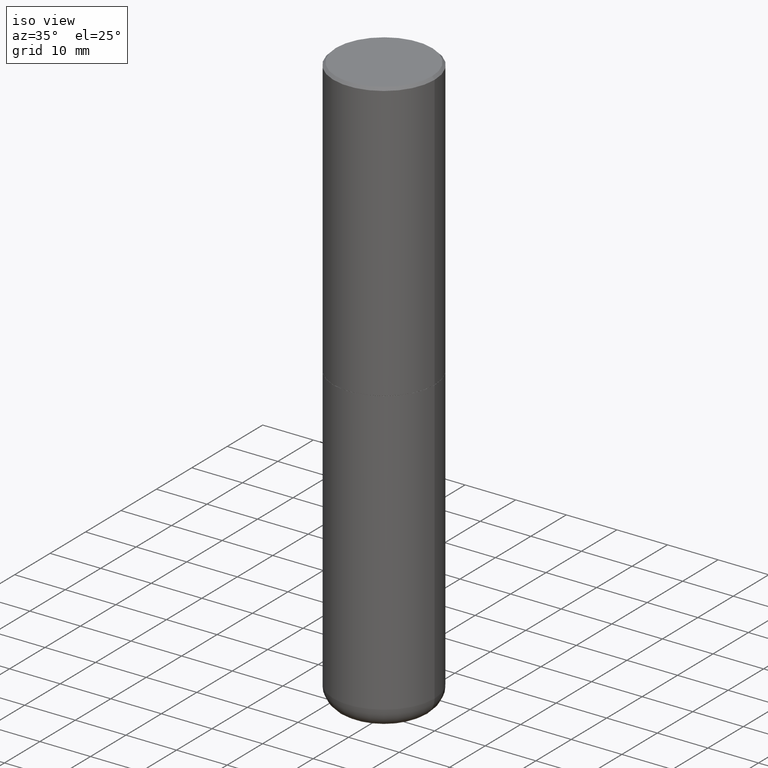
[diagram: clean part render]
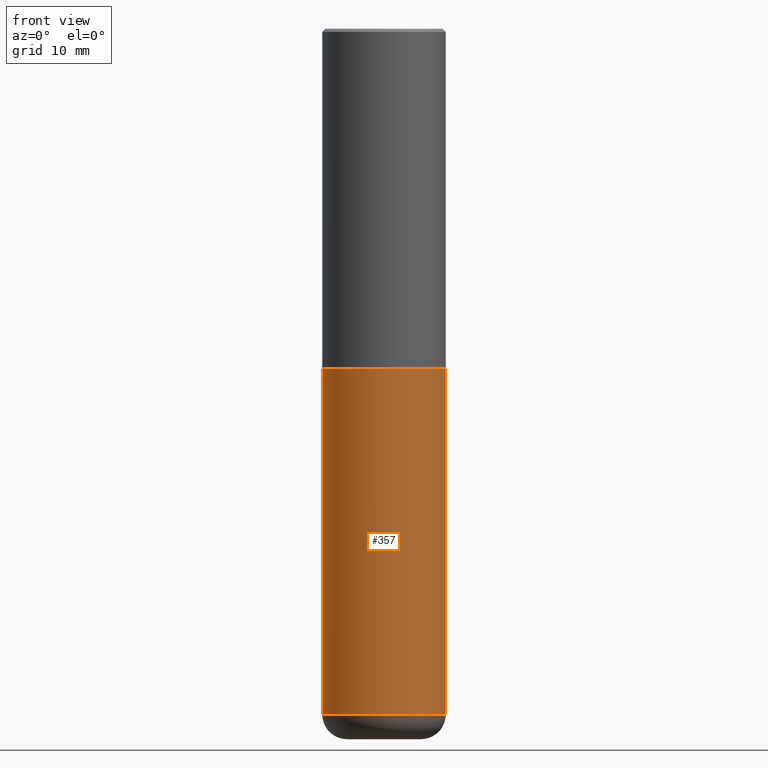
[diagram: tour spotlight — one face highlighted and labeled with its STEP entity id]
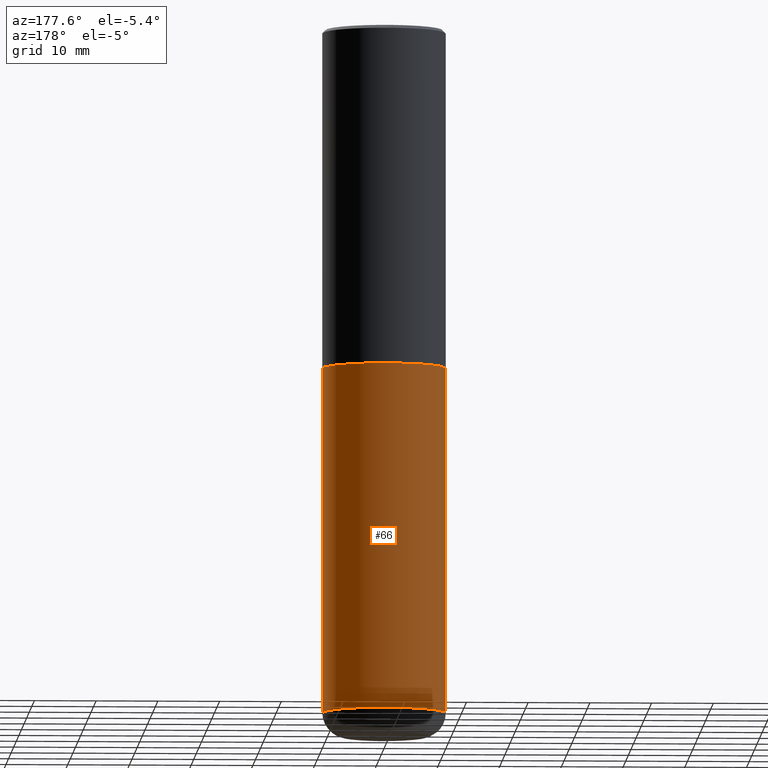
[diagram: tour spotlight — one face highlighted and labeled with its STEP entity id]
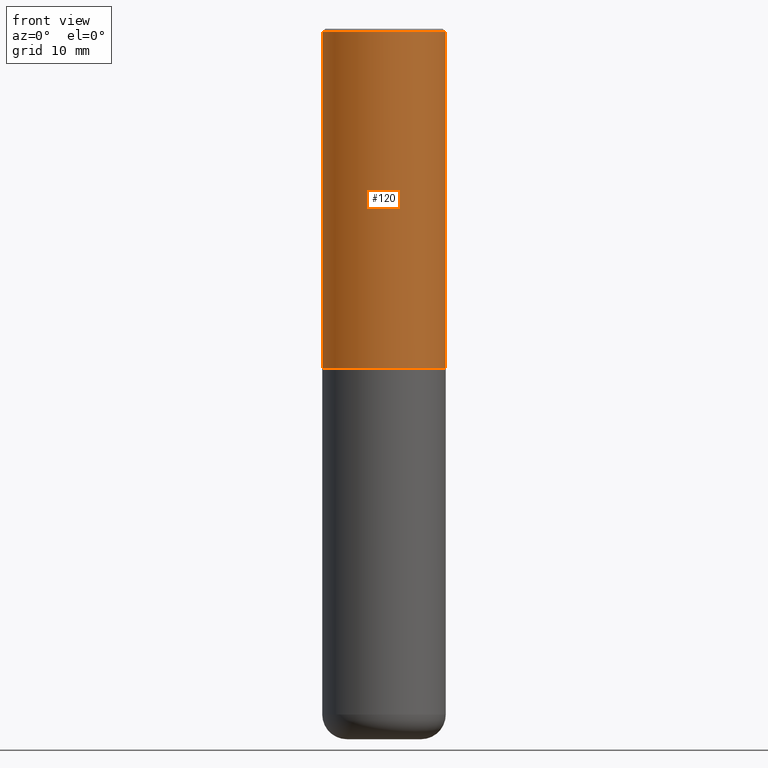
[diagram: tour spotlight — one face highlighted and labeled with its STEP entity id]
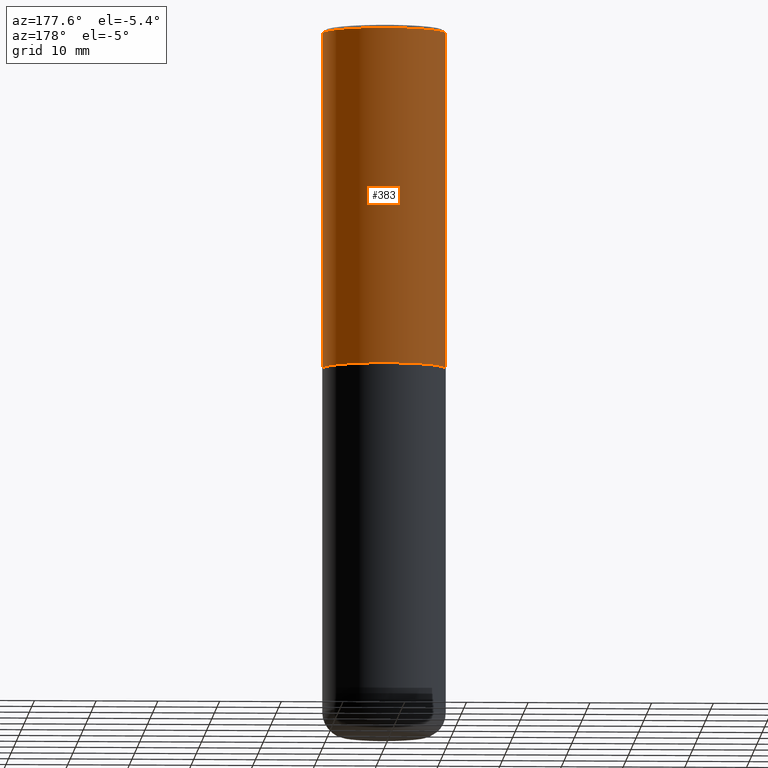
[diagram: tour spotlight — one face highlighted and labeled with its STEP entity id]
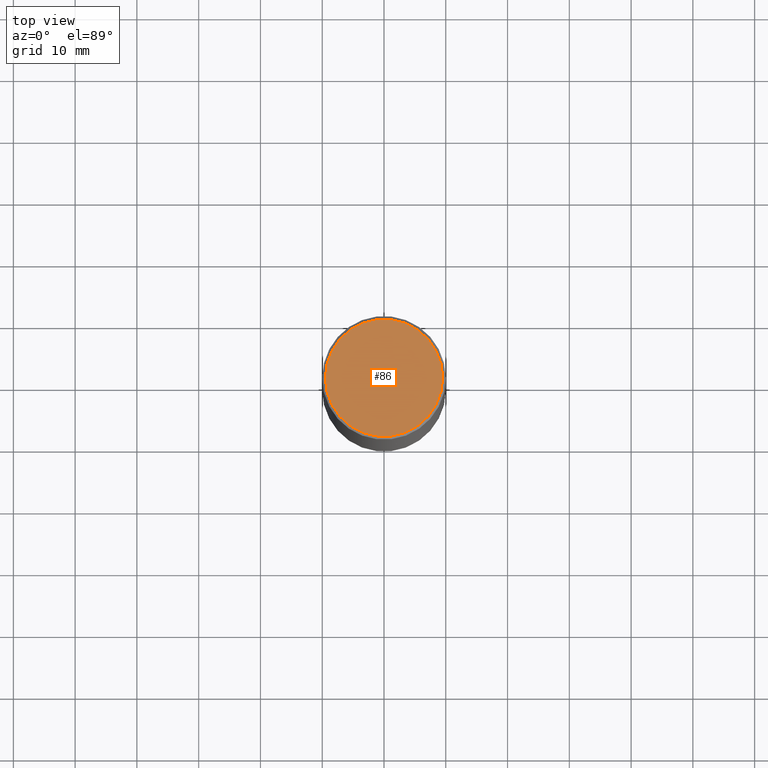
[diagram: tour spotlight — one face highlighted and labeled with its STEP entity id]
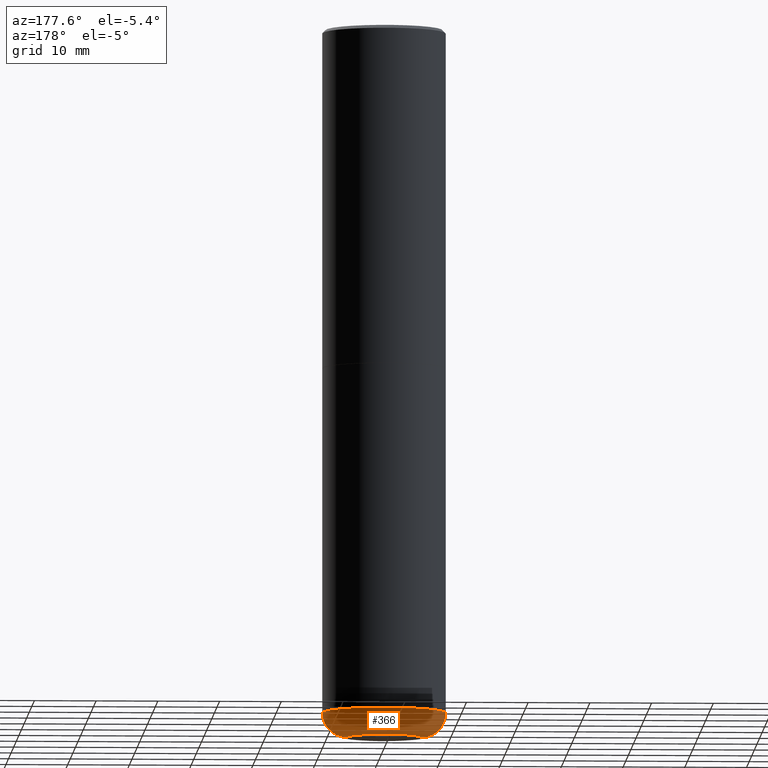
[diagram: tour spotlight — one face highlighted and labeled with its STEP entity id]
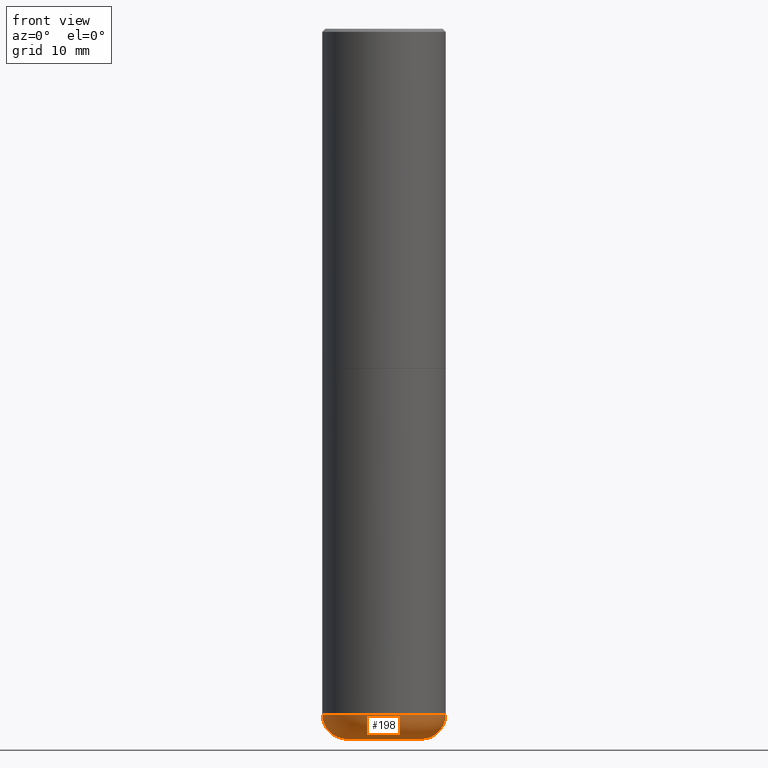
[diagram: tour spotlight — one face highlighted and labeled with its STEP entity id]
A machine part: a face-by-face anatomy tour. The part has 14 B-rep faces; the first image is the clean iso view, then the 7 largest visible faces are spotlighted one at a time (largest first), each with its STEP entity span.

Face 1 — front view, entity #357. In plain terms, the highlighted cylindrical surface (partial cylindrical patch) has radius 10 mm, axis along (-0, 0, 1).
Definition (entity closure, byte-faithful):
#2 = VECTOR ( 'NONE', #296, 39.37007874015748143 ) ;
#11 = FACE_OUTER_BOUND ( 'NONE', #188, .T. ) ;
#18 = DIRECTION ( 'NONE',  ( -2.445468806185136597E-29, 3.491481338843145583E-15, 1.000000000000000000 ) ) ;
#21 = CIRCLE ( 'NONE', #252, 0.3937000000000000499 ) ;
#27 = CIRCLE ( 'NONE', #351, 0.3937000000000001054 ) ;
#32 = VERTEX_POINT ( 'NONE', #114 ) ;
#46 = EDGE_CURVE ( 'NONE', #121, #395, #27, .T. ) ;
#56 = VERTEX_POINT ( 'NONE', #345 ) ;
#73 = CYLINDRICAL_SURFACE ( 'NONE', #293, 0.3937000000000001054 ) ;
#98 = DIRECTION ( 'NONE',  ( -2.445468806185136597E-29, 3.491481338843145583E-15, 1.000000000000000000 ) ) ;
#101 = ORIENTED_EDGE ( 'NONE', *, *, #282, .F. ) ;
#113 = EDGE_CURVE ( 'NONE', #56, #32, #21, .T. ) ;
#114 = CARTESIAN_POINT ( 'NONE',  ( 0.3937000000000000499, -1.030964609733602906E-14, -2.165399999999999547 ) ) ;
#121 = VERTEX_POINT ( 'NONE', #176 ) ;
#141 = CARTESIAN_POINT ( 'NONE',  ( 5.295418152913293224E-29, -7.560453691130945845E-15, -2.165399999999999547 ) ) ;
#143 = CARTESIAN_POINT ( 'NONE',  ( 0.3937000000000001054, -2.749192406205084005E-15, 1.919750796630860452E-29 ) ) ;
#163 = DIRECTION ( 'NONE',  ( 1.000000000000000000, -6.982962677686266711E-15, 4.876176775795935793E-29 ) ) ;
#176 = CARTESIAN_POINT ( 'NONE',  ( -0.3937000000000001054, -1.246071584819091497E-14, -4.370099999999998985 ) ) ;
#178 = VECTOR ( 'NONE', #284, 39.37007874015748143 ) ;
#179 = DIRECTION ( 'NONE',  ( 1.000000000000000000, -6.982962677686265133E-15, 0.000000000000000000 ) ) ;
#181 = CARTESIAN_POINT ( 'NONE',  ( 1.068694322990966450E-28, -1.525812259887842897E-14, -4.370099999999998985 ) ) ;
#188 = EDGE_LOOP ( 'NONE', ( #101, #350, #255, #230 ) ) ;
#204 = EDGE_CURVE ( 'NONE', #395, #32, #226, .T. ) ;
#214 = DIRECTION ( 'NONE',  ( -2.445468806185136597E-29, 3.491481338843145583E-15, 1.000000000000000000 ) ) ;
#226 = LINE ( 'NONE', #143, #178 ) ;
#230 = ORIENTED_EDGE ( 'NONE', *, *, #113, .F. ) ;
#234 = CARTESIAN_POINT ( 'NONE',  ( -0.3937000000000001054, 2.797406750687515181E-15, -1.936584745033357016E-29 ) ) ;
#243 = DIRECTION ( 'NONE',  ( 1.000000000000000000, -6.982962677686261977E-15, 0.000000000000000000 ) ) ;
#252 = AXIS2_PLACEMENT_3D ( 'NONE', #141, #18, #179 ) ;
#255 = ORIENTED_EDGE ( 'NONE', *, *, #204, .T. ) ;
#264 = CARTESIAN_POINT ( 'NONE',  ( 0.000000000000000000, 0.000000000000000000, 0.000000000000000000 ) ) ;
#282 = EDGE_CURVE ( 'NONE', #121, #56, #305, .T. ) ;
#284 = DIRECTION ( 'NONE',  ( -2.445468806185136877E-29, 3.491481338843145188E-15, 1.000000000000000000 ) ) ;
#293 = AXIS2_PLACEMENT_3D ( 'NONE', #264, #98, #163 ) ;
#296 = DIRECTION ( 'NONE',  ( -2.445468806185136877E-29, 3.491481338843145188E-15, 1.000000000000000000 ) ) ;
#305 = LINE ( 'NONE', #234, #2 ) ;
#308 = CARTESIAN_POINT ( 'NONE',  ( 0.3937000000000001054, -1.800731500508351219E-14, -4.370099999999998985 ) ) ;
#345 = CARTESIAN_POINT ( 'NONE',  ( -0.3937000000000000499, -8.611881394317173410E-15, -2.165399999999999547 ) ) ;
#350 = ORIENTED_EDGE ( 'NONE', *, *, #46, .T. ) ;
#351 = AXIS2_PLACEMENT_3D ( 'NONE', #181, #214, #243 ) ;
#357 = ADVANCED_FACE ( 'NONE', ( #11 ), #73, .T. ) ;
#395 = VERTEX_POINT ( 'NONE', #308 ) ;

Face 2 — auxiliary view, entity #66. In plain terms, the highlighted cylindrical surface (partial cylindrical patch) has radius 10 mm, axis along (-0, 0, 1).
Definition (entity closure, byte-faithful):
#2 = VECTOR ( 'NONE', #296, 39.37007874015748143 ) ;
#8 = AXIS2_PLACEMENT_3D ( 'NONE', #49, #311, #317 ) ;
#32 = VERTEX_POINT ( 'NONE', #114 ) ;
#49 = CARTESIAN_POINT ( 'NONE',  ( 0.000000000000000000, 0.000000000000000000, 0.000000000000000000 ) ) ;
#56 = VERTEX_POINT ( 'NONE', #345 ) ;
#66 = ADVANCED_FACE ( 'NONE', ( #109 ), #401, .T. ) ;
#109 = FACE_OUTER_BOUND ( 'NONE', #285, .T. ) ;
#114 = CARTESIAN_POINT ( 'NONE',  ( 0.3937000000000000499, -1.030964609733602906E-14, -2.165399999999999547 ) ) ;
#117 = DIRECTION ( 'NONE',  ( 1.000000000000000000, -6.982962677686265133E-15, 0.000000000000000000 ) ) ;
#121 = VERTEX_POINT ( 'NONE', #176 ) ;
#143 = CARTESIAN_POINT ( 'NONE',  ( 0.3937000000000001054, -2.749192406205084005E-15, 1.919750796630860452E-29 ) ) ;
#169 = AXIS2_PLACEMENT_3D ( 'NONE', #318, #413, #117 ) ;
#176 = CARTESIAN_POINT ( 'NONE',  ( -0.3937000000000001054, -1.246071584819091497E-14, -4.370099999999998985 ) ) ;
#178 = VECTOR ( 'NONE', #284, 39.37007874015748143 ) ;
#196 = DIRECTION ( 'NONE',  ( -2.445468806185136597E-29, 3.491481338843145583E-15, 1.000000000000000000 ) ) ;
#204 = EDGE_CURVE ( 'NONE', #395, #32, #226, .T. ) ;
#217 = EDGE_CURVE ( 'NONE', #32, #56, #380, .T. ) ;
#224 = ORIENTED_EDGE ( 'NONE', *, *, #260, .T. ) ;
#226 = LINE ( 'NONE', #143, #178 ) ;
#234 = CARTESIAN_POINT ( 'NONE',  ( -0.3937000000000001054, 2.797406750687515181E-15, -1.936584745033357016E-29 ) ) ;
#260 = EDGE_CURVE ( 'NONE', #395, #121, #307, .T. ) ;
#282 = EDGE_CURVE ( 'NONE', #121, #56, #305, .T. ) ;
#284 = DIRECTION ( 'NONE',  ( -2.445468806185136877E-29, 3.491481338843145188E-15, 1.000000000000000000 ) ) ;
#285 = EDGE_LOOP ( 'NONE', ( #224, #297, #363, #359 ) ) ;
#296 = DIRECTION ( 'NONE',  ( -2.445468806185136877E-29, 3.491481338843145188E-15, 1.000000000000000000 ) ) ;
#297 = ORIENTED_EDGE ( 'NONE', *, *, #282, .T. ) ;
#305 = LINE ( 'NONE', #234, #2 ) ;
#307 = CIRCLE ( 'NONE', #362, 0.3937000000000001054 ) ;
#308 = CARTESIAN_POINT ( 'NONE',  ( 0.3937000000000001054, -1.800731500508351219E-14, -4.370099999999998985 ) ) ;
#311 = DIRECTION ( 'NONE',  ( -2.445468806185136597E-29, 3.491481338843145583E-15, 1.000000000000000000 ) ) ;
#317 = DIRECTION ( 'NONE',  ( 1.000000000000000000, -6.982962677686266711E-15, 4.876176775795935793E-29 ) ) ;
#318 = CARTESIAN_POINT ( 'NONE',  ( 5.295418152913293224E-29, -7.560453691130945845E-15, -2.165399999999999547 ) ) ;
#331 = CARTESIAN_POINT ( 'NONE',  ( 1.068694322990966450E-28, -1.525812259887842897E-14, -4.370099999999998985 ) ) ;
#345 = CARTESIAN_POINT ( 'NONE',  ( -0.3937000000000000499, -8.611881394317173410E-15, -2.165399999999999547 ) ) ;
#359 = ORIENTED_EDGE ( 'NONE', *, *, #204, .F. ) ;
#362 = AXIS2_PLACEMENT_3D ( 'NONE', #331, #196, #391 ) ;
#363 = ORIENTED_EDGE ( 'NONE', *, *, #217, .F. ) ;
#380 = CIRCLE ( 'NONE', #169, 0.3937000000000000499 ) ;
#391 = DIRECTION ( 'NONE',  ( 1.000000000000000000, -6.982962677686261977E-15, 0.000000000000000000 ) ) ;
#395 = VERTEX_POINT ( 'NONE', #308 ) ;
#401 = CYLINDRICAL_SURFACE ( 'NONE', #8, 0.3937000000000001054 ) ;
#413 = DIRECTION ( 'NONE',  ( -2.445468806185136597E-29, 3.491481338843145583E-15, 1.000000000000000000 ) ) ;

Face 3 — front view, entity #120. In plain terms, the highlighted cylindrical surface (partial cylindrical patch) has radius 10 mm, axis along (-0, 0, 1).
Definition (entity closure, byte-faithful):
#13 = ORIENTED_EDGE ( 'NONE', *, *, #361, .F. ) ;
#14 = VERTEX_POINT ( 'NONE', #347 ) ;
#33 = AXIS2_PLACEMENT_3D ( 'NONE', #398, #303, #106 ) ;
#45 = DIRECTION ( 'NONE',  ( -2.445468806185136597E-29, 3.491481338843145583E-15, 1.000000000000000000 ) ) ;
#47 = DIRECTION ( 'NONE',  ( 1.000000000000000000, -6.982962677686266711E-15, 4.876176775795935793E-29 ) ) ;
#58 = VERTEX_POINT ( 'NONE', #237 ) ;
#102 = VECTOR ( 'NONE', #278, 39.37007874015748143 ) ;
#106 = DIRECTION ( 'NONE',  ( 1.000000000000000000, -6.982962677686266711E-15, 0.000000000000000000 ) ) ;
#108 = LINE ( 'NONE', #175, #374 ) ;
#120 = ADVANCED_FACE ( 'NONE', ( #375 ), #280, .T. ) ;
#128 = EDGE_CURVE ( 'NONE', #14, #219, #139, .T. ) ;
#134 = EDGE_LOOP ( 'NONE', ( #382, #336, #301, #13 ) ) ;
#139 = LINE ( 'NONE', #245, #102 ) ;
#149 = CARTESIAN_POINT ( 'NONE',  ( -0.3937000000000002720, -1.015989167596965718E-15, -2.164399999999999658 ) ) ;
#152 = AXIS2_PLACEMENT_3D ( 'NONE', #223, #417, #355 ) ;
#167 = EDGE_CURVE ( 'NONE', #191, #14, #360, .T. ) ;
#175 = CARTESIAN_POINT ( 'NONE',  ( -0.3937000000000002164, 2.797406750687515970E-15, -1.936584745033357576E-29 ) ) ;
#191 = VERTEX_POINT ( 'NONE', #149 ) ;
#205 = DIRECTION ( 'NONE',  ( -2.445468806185136877E-29, 3.491481338843145188E-15, 1.000000000000000000 ) ) ;
#212 = CARTESIAN_POINT ( 'NONE',  ( 0.000000000000000000, 0.000000000000000000, 0.000000000000000000 ) ) ;
#219 = VERTEX_POINT ( 'NONE', #376 ) ;
#223 = CARTESIAN_POINT ( 'NONE',  ( 5.292972684107107621E-29, -7.556962209792102838E-15, -2.164399999999999658 ) ) ;
#237 = CARTESIAN_POINT ( 'NONE',  ( -0.3937000000000001054, 2.679362779428220707E-15, -0.02000000000000008715 ) ) ;
#245 = CARTESIAN_POINT ( 'NONE',  ( 0.3937000000000002164, -2.749192406205084794E-15, 1.919750796630861012E-29 ) ) ;
#278 = DIRECTION ( 'NONE',  ( -2.445468806185136877E-29, 3.491481338843145188E-15, 1.000000000000000000 ) ) ;
#280 = CYLINDRICAL_SURFACE ( 'NONE', #326, 0.3937000000000002164 ) ;
#301 = ORIENTED_EDGE ( 'NONE', *, *, #128, .T. ) ;
#303 = DIRECTION ( 'NONE',  ( -2.445468806185136597E-29, 3.491481338843145583E-15, 1.000000000000000000 ) ) ;
#326 = AXIS2_PLACEMENT_3D ( 'NONE', #212, #45, #47 ) ;
#336 = ORIENTED_EDGE ( 'NONE', *, *, #167, .T. ) ;
#347 = CARTESIAN_POINT ( 'NONE',  ( 0.3937000000000002720, -1.030615461599718763E-14, -2.164399999999999658 ) ) ;
#355 = DIRECTION ( 'NONE',  ( 1.000000000000000000, -6.982962677686269077E-15, 0.000000000000000000 ) ) ;
#360 = CIRCLE ( 'NONE', #152, 0.3937000000000002720 ) ;
#361 = EDGE_CURVE ( 'NONE', #58, #219, #412, .T. ) ;
#374 = VECTOR ( 'NONE', #205, 39.37007874015748143 ) ;
#375 = FACE_OUTER_BOUND ( 'NONE', #134, .T. ) ;
#376 = CARTESIAN_POINT ( 'NONE',  ( 0.3937000000000001054, -2.770807688499516128E-15, -0.02000000000000008715 ) ) ;
#382 = ORIENTED_EDGE ( 'NONE', *, *, #410, .F. ) ;
#398 = CARTESIAN_POINT ( 'NONE',  ( 4.890937612370294178E-31, -6.982962677686321191E-17, -0.02000000000000008715 ) ) ;
#410 = EDGE_CURVE ( 'NONE', #191, #58, #108, .T. ) ;
#412 = CIRCLE ( 'NONE', #33, 0.3937000000000001054 ) ;
#417 = DIRECTION ( 'NONE',  ( -2.445468806185136597E-29, 3.491481338843145583E-15, 1.000000000000000000 ) ) ;

Face 4 — auxiliary view, entity #383. In plain terms, the highlighted cylindrical surface (partial cylindrical patch) has radius 10 mm, axis along (-0, 0, 1).
Definition (entity closure, byte-faithful):
#14 = VERTEX_POINT ( 'NONE', #347 ) ;
#16 = CARTESIAN_POINT ( 'NONE',  ( 0.000000000000000000, 0.000000000000000000, 0.000000000000000000 ) ) ;
#17 = EDGE_CURVE ( 'NONE', #219, #58, #332, .T. ) ;
#23 = DIRECTION ( 'NONE',  ( -2.445468806185136597E-29, 3.491481338843145583E-15, 1.000000000000000000 ) ) ;
#42 = DIRECTION ( 'NONE',  ( 1.000000000000000000, -6.982962677686266711E-15, 4.876176775795935793E-29 ) ) ;
#58 = VERTEX_POINT ( 'NONE', #237 ) ;
#76 = EDGE_CURVE ( 'NONE', #14, #191, #239, .T. ) ;
#79 = DIRECTION ( 'NONE',  ( 1.000000000000000000, -6.982962677686266711E-15, 0.000000000000000000 ) ) ;
#82 = CARTESIAN_POINT ( 'NONE',  ( 4.890937612370294178E-31, -6.982962677686321191E-17, -0.02000000000000008715 ) ) ;
#88 = EDGE_LOOP ( 'NONE', ( #325, #267, #328, #216 ) ) ;
#102 = VECTOR ( 'NONE', #278, 39.37007874015748143 ) ;
#108 = LINE ( 'NONE', #175, #374 ) ;
#128 = EDGE_CURVE ( 'NONE', #14, #219, #139, .T. ) ;
#139 = LINE ( 'NONE', #245, #102 ) ;
#144 = AXIS2_PLACEMENT_3D ( 'NONE', #82, #23, #79 ) ;
#149 = CARTESIAN_POINT ( 'NONE',  ( -0.3937000000000002720, -1.015989167596965718E-15, -2.164399999999999658 ) ) ;
#175 = CARTESIAN_POINT ( 'NONE',  ( -0.3937000000000002164, 2.797406750687515970E-15, -1.936584745033357576E-29 ) ) ;
#183 = AXIS2_PLACEMENT_3D ( 'NONE', #411, #372, #274 ) ;
#191 = VERTEX_POINT ( 'NONE', #149 ) ;
#205 = DIRECTION ( 'NONE',  ( -2.445468806185136877E-29, 3.491481338843145188E-15, 1.000000000000000000 ) ) ;
#207 = DIRECTION ( 'NONE',  ( -2.445468806185136597E-29, 3.491481338843145583E-15, 1.000000000000000000 ) ) ;
#216 = ORIENTED_EDGE ( 'NONE', *, *, #128, .F. ) ;
#219 = VERTEX_POINT ( 'NONE', #376 ) ;
#228 = FACE_OUTER_BOUND ( 'NONE', #88, .T. ) ;
#237 = CARTESIAN_POINT ( 'NONE',  ( -0.3937000000000001054, 2.679362779428220707E-15, -0.02000000000000008715 ) ) ;
#239 = CIRCLE ( 'NONE', #183, 0.3937000000000002720 ) ;
#245 = CARTESIAN_POINT ( 'NONE',  ( 0.3937000000000002164, -2.749192406205084794E-15, 1.919750796630861012E-29 ) ) ;
#267 = ORIENTED_EDGE ( 'NONE', *, *, #410, .T. ) ;
#274 = DIRECTION ( 'NONE',  ( 1.000000000000000000, -6.982962677686269077E-15, 0.000000000000000000 ) ) ;
#278 = DIRECTION ( 'NONE',  ( -2.445468806185136877E-29, 3.491481338843145188E-15, 1.000000000000000000 ) ) ;
#325 = ORIENTED_EDGE ( 'NONE', *, *, #76, .T. ) ;
#328 = ORIENTED_EDGE ( 'NONE', *, *, #17, .F. ) ;
#332 = CIRCLE ( 'NONE', #144, 0.3937000000000001054 ) ;
#333 = AXIS2_PLACEMENT_3D ( 'NONE', #16, #207, #42 ) ;
#337 = CYLINDRICAL_SURFACE ( 'NONE', #333, 0.3937000000000002164 ) ;
#347 = CARTESIAN_POINT ( 'NONE',  ( 0.3937000000000002720, -1.030615461599718763E-14, -2.164399999999999658 ) ) ;
#372 = DIRECTION ( 'NONE',  ( -2.445468806185136597E-29, 3.491481338843145583E-15, 1.000000000000000000 ) ) ;
#374 = VECTOR ( 'NONE', #205, 39.37007874015748143 ) ;
#376 = CARTESIAN_POINT ( 'NONE',  ( 0.3937000000000001054, -2.770807688499516128E-15, -0.02000000000000008715 ) ) ;
#383 = ADVANCED_FACE ( 'NONE', ( #228 ), #337, .T. ) ;
#410 = EDGE_CURVE ( 'NONE', #191, #58, #108, .T. ) ;
#411 = CARTESIAN_POINT ( 'NONE',  ( 5.292972684107107621E-29, -7.556962209792102838E-15, -2.164399999999999658 ) ) ;

Face 5 — top view, entity #86. In plain terms, the highlighted planar face has unit normal (0, -0, -1).
Definition (entity closure, byte-faithful):
#24 = DIRECTION ( 'NONE',  ( -1.000000000000000000, 6.982962677686265922E-15, -4.876176775795935793E-29 ) ) ;
#25 = EDGE_CURVE ( 'NONE', #201, #154, #379, .T. ) ;
#39 = EDGE_CURVE ( 'NONE', #154, #201, #388, .T. ) ;
#53 = AXIS2_PLACEMENT_3D ( 'NONE', #342, #343, #24 ) ;
#74 = DIRECTION ( 'NONE',  ( -2.445468806185136597E-29, 3.491481338843145583E-15, 1.000000000000000000 ) ) ;
#77 = DIRECTION ( 'NONE',  ( -2.445468806185136597E-29, 3.491481338843145583E-15, 1.000000000000000000 ) ) ;
#86 = ADVANCED_FACE ( 'NONE', ( #138 ), #367, .F. ) ;
#137 = DIRECTION ( 'NONE',  ( 1.000000000000000000, -6.982962677686266711E-15, 4.877734241229876808E-29 ) ) ;
#138 = FACE_OUTER_BOUND ( 'NONE', #373, .T. ) ;
#154 = VERTEX_POINT ( 'NONE', #381 ) ;
#201 = VERTEX_POINT ( 'NONE', #218 ) ;
#208 = AXIS2_PLACEMENT_3D ( 'NONE', #244, #77, #341 ) ;
#218 = CARTESIAN_POINT ( 'NONE',  ( -0.3736999999999999211, 2.644447966039789453E-15, 2.262311619753034352E-16 ) ) ;
#244 = CARTESIAN_POINT ( 'NONE',  ( -5.532412495976664402E-45, 7.898818803016371119E-31, 2.262311619753217762E-16 ) ) ;
#275 = ORIENTED_EDGE ( 'NONE', *, *, #39, .T. ) ;
#321 = ORIENTED_EDGE ( 'NONE', *, *, #25, .T. ) ;
#341 = DIRECTION ( 'NONE',  ( 1.000000000000000000, -6.982962677686266711E-15, 4.877734241229876808E-29 ) ) ;
#342 = CARTESIAN_POINT ( 'NONE',  ( 2.609533152651356620E-15, 0.3736999999999999211, -1.191650995338022328E-15 ) ) ;
#343 = DIRECTION ( 'NONE',  ( 2.438088387897960049E-29, -3.491481338843145188E-15, -1.000000000000000000 ) ) ;
#344 = AXIS2_PLACEMENT_3D ( 'NONE', #370, #74, #137 ) ;
#367 = PLANE ( 'NONE',  #53 ) ;
#370 = CARTESIAN_POINT ( 'NONE',  ( -5.532412495976664402E-45, 7.898818803016371119E-31, 2.262311619753217762E-16 ) ) ;
#373 = EDGE_LOOP ( 'NONE', ( #321, #275 ) ) ;
#379 = CIRCLE ( 'NONE', #344, 0.3736999999999999211 ) ;
#381 = CARTESIAN_POINT ( 'NONE',  ( 0.3736999999999999211, -2.667287895133367964E-15, 2.262311619753402158E-16 ) ) ;
#388 = CIRCLE ( 'NONE', #208, 0.3736999999999999211 ) ;

Face 6 — auxiliary view, entity #366. In plain terms, the highlighted toroidal blend (fillet) surface has major radius 5.9995 mm and minor (blend) radius 4.0005 mm.
Definition (entity closure, byte-faithful):
#6 = FACE_OUTER_BOUND ( 'NONE', #60, .T. ) ;
#7 = CARTESIAN_POINT ( 'NONE',  ( 0.2362000000000000210, -1.690749838334792550E-14, -4.370099999999998985 ) ) ;
#19 = EDGE_CURVE ( 'NONE', #394, #121, #319, .T. ) ;
#31 = ORIENTED_EDGE ( 'NONE', *, *, #260, .F. ) ;
#60 = EDGE_LOOP ( 'NONE', ( #119, #258, #31, #150 ) ) ;
#67 = DIRECTION ( 'NONE',  ( -2.445468806185136597E-29, 3.491481338843145583E-15, 1.000000000000000000 ) ) ;
#81 = TOROIDAL_SURFACE ( 'NONE', #327, 0.2362000000000000210, 0.1575000000000000844 ) ;
#119 = ORIENTED_EDGE ( 'NONE', *, *, #298, .T. ) ;
#121 = VERTEX_POINT ( 'NONE', #176 ) ;
#135 = CARTESIAN_POINT ( 'NONE',  ( 1.068694322990966450E-28, -1.525812259887842897E-14, -4.370099999999998985 ) ) ;
#150 = ORIENTED_EDGE ( 'NONE', *, *, #281, .F. ) ;
#159 = CIRCLE ( 'NONE', #369, 0.1575000000000000566 ) ;
#165 = DIRECTION ( 'NONE',  ( -6.982962677686266711E-15, -1.000000000000000000, 3.491481338843145583E-15 ) ) ;
#168 = CARTESIAN_POINT ( 'NONE',  ( -0.2362000000000000766, -1.329522240803589203E-14, -4.527599999999999625 ) ) ;
#172 = DIRECTION ( 'NONE',  ( -1.000000000000000000, 7.105427357601006592E-15, 0.000000000000000000 ) ) ;
#176 = CARTESIAN_POINT ( 'NONE',  ( -0.3937000000000001054, -1.246071584819091497E-14, -4.370099999999998985 ) ) ;
#177 = AXIS2_PLACEMENT_3D ( 'NONE', #209, #409, #172 ) ;
#184 = CIRCLE ( 'NONE', #210, 0.2362000000000000766 ) ;
#186 = VERTEX_POINT ( 'NONE', #250 ) ;
#196 = DIRECTION ( 'NONE',  ( -2.445468806185136597E-29, 3.491481338843145583E-15, 1.000000000000000000 ) ) ;
#199 = DIRECTION ( 'NONE',  ( 1.000000000000000000, -6.982962677686262766E-15, 0.000000000000000000 ) ) ;
#209 = CARTESIAN_POINT ( 'NONE',  ( -0.2362000000000000210, -1.357982065701307100E-14, -4.370099999999998985 ) ) ;
#210 = AXIS2_PLACEMENT_3D ( 'NONE', #330, #67, #199 ) ;
#250 = CARTESIAN_POINT ( 'NONE',  ( 0.2362000000000000766, -1.745740669421572042E-14, -4.527599999999999625 ) ) ;
#258 = ORIENTED_EDGE ( 'NONE', *, *, #19, .T. ) ;
#259 = DIRECTION ( 'NONE',  ( -2.445468806185136597E-29, 3.491481338843145583E-15, 1.000000000000000000 ) ) ;
#260 = EDGE_CURVE ( 'NONE', #395, #121, #307, .T. ) ;
#263 = DIRECTION ( 'NONE',  ( 1.000000000000000000, -6.982962677686259611E-15, 0.000000000000000000 ) ) ;
#268 = DIRECTION ( 'NONE',  ( 1.000000000000000000, -6.982962677686261977E-15, 4.883557194083110659E-29 ) ) ;
#281 = EDGE_CURVE ( 'NONE', #186, #395, #159, .T. ) ;
#298 = EDGE_CURVE ( 'NONE', #186, #394, #184, .T. ) ;
#307 = CIRCLE ( 'NONE', #362, 0.3937000000000001054 ) ;
#308 = CARTESIAN_POINT ( 'NONE',  ( 0.3937000000000001054, -1.800731500508351219E-14, -4.370099999999998985 ) ) ;
#319 = CIRCLE ( 'NONE', #177, 0.1575000000000000566 ) ;
#327 = AXIS2_PLACEMENT_3D ( 'NONE', #135, #259, #268 ) ;
#330 = CARTESIAN_POINT ( 'NONE',  ( 1.107210456688382298E-28, -1.580803090974622389E-14, -4.527599999999999625 ) ) ;
#331 = CARTESIAN_POINT ( 'NONE',  ( 1.068694322990966450E-28, -1.525812259887842897E-14, -4.370099999999998985 ) ) ;
#362 = AXIS2_PLACEMENT_3D ( 'NONE', #331, #196, #391 ) ;
#366 = ADVANCED_FACE ( 'NONE', ( #6 ), #81, .T. ) ;
#369 = AXIS2_PLACEMENT_3D ( 'NONE', #7, #165, #263 ) ;
#391 = DIRECTION ( 'NONE',  ( 1.000000000000000000, -6.982962677686261977E-15, 0.000000000000000000 ) ) ;
#394 = VERTEX_POINT ( 'NONE', #168 ) ;
#395 = VERTEX_POINT ( 'NONE', #308 ) ;
#409 = DIRECTION ( 'NONE',  ( 7.105427357601001859E-15, 1.000000000000000000, -3.491481338843145583E-15 ) ) ;

Face 7 — front view, entity #198. In plain terms, the highlighted toroidal blend (fillet) surface has major radius 5.9995 mm and minor (blend) radius 4.0005 mm.
Definition (entity closure, byte-faithful):
#7 = CARTESIAN_POINT ( 'NONE',  ( 0.2362000000000000210, -1.690749838334792550E-14, -4.370099999999998985 ) ) ;
#19 = EDGE_CURVE ( 'NONE', #394, #121, #319, .T. ) ;
#27 = CIRCLE ( 'NONE', #351, 0.3937000000000001054 ) ;
#46 = EDGE_CURVE ( 'NONE', #121, #395, #27, .T. ) ;
#70 = ORIENTED_EDGE ( 'NONE', *, *, #281, .T. ) ;
#84 = ORIENTED_EDGE ( 'NONE', *, *, #19, .F. ) ;
#90 = DIRECTION ( 'NONE',  ( 1.000000000000000000, -6.982962677686261977E-15, 4.883557194083110659E-29 ) ) ;
#121 = VERTEX_POINT ( 'NONE', #176 ) ;
#123 = TOROIDAL_SURFACE ( 'NONE', #272, 0.2362000000000000210, 0.1575000000000000844 ) ;
#124 = CARTESIAN_POINT ( 'NONE',  ( 1.068694322990966450E-28, -1.525812259887842897E-14, -4.370099999999998985 ) ) ;
#153 = CARTESIAN_POINT ( 'NONE',  ( 1.107210456688382298E-28, -1.580803090974622389E-14, -4.527599999999999625 ) ) ;
#156 = EDGE_LOOP ( 'NONE', ( #84, #227, #70, #251 ) ) ;
#159 = CIRCLE ( 'NONE', #369, 0.1575000000000000566 ) ;
#162 = EDGE_CURVE ( 'NONE', #394, #186, #397, .T. ) ;
#165 = DIRECTION ( 'NONE',  ( -6.982962677686266711E-15, -1.000000000000000000, 3.491481338843145583E-15 ) ) ;
#168 = CARTESIAN_POINT ( 'NONE',  ( -0.2362000000000000766, -1.329522240803589203E-14, -4.527599999999999625 ) ) ;
#172 = DIRECTION ( 'NONE',  ( -1.000000000000000000, 7.105427357601006592E-15, 0.000000000000000000 ) ) ;
#176 = CARTESIAN_POINT ( 'NONE',  ( -0.3937000000000001054, -1.246071584819091497E-14, -4.370099999999998985 ) ) ;
#177 = AXIS2_PLACEMENT_3D ( 'NONE', #209, #409, #172 ) ;
#181 = CARTESIAN_POINT ( 'NONE',  ( 1.068694322990966450E-28, -1.525812259887842897E-14, -4.370099999999998985 ) ) ;
#186 = VERTEX_POINT ( 'NONE', #250 ) ;
#190 = DIRECTION ( 'NONE',  ( 1.000000000000000000, -6.982962677686262766E-15, 0.000000000000000000 ) ) ;
#198 = ADVANCED_FACE ( 'NONE', ( #353 ), #123, .T. ) ;
#209 = CARTESIAN_POINT ( 'NONE',  ( -0.2362000000000000210, -1.357982065701307100E-14, -4.370099999999998985 ) ) ;
#214 = DIRECTION ( 'NONE',  ( -2.445468806185136597E-29, 3.491481338843145583E-15, 1.000000000000000000 ) ) ;
#215 = AXIS2_PLACEMENT_3D ( 'NONE', #153, #358, #190 ) ;
#227 = ORIENTED_EDGE ( 'NONE', *, *, #162, .T. ) ;
#243 = DIRECTION ( 'NONE',  ( 1.000000000000000000, -6.982962677686261977E-15, 0.000000000000000000 ) ) ;
#250 = CARTESIAN_POINT ( 'NONE',  ( 0.2362000000000000766, -1.745740669421572042E-14, -4.527599999999999625 ) ) ;
#251 = ORIENTED_EDGE ( 'NONE', *, *, #46, .F. ) ;
#263 = DIRECTION ( 'NONE',  ( 1.000000000000000000, -6.982962677686259611E-15, 0.000000000000000000 ) ) ;
#272 = AXIS2_PLACEMENT_3D ( 'NONE', #124, #323, #90 ) ;
#281 = EDGE_CURVE ( 'NONE', #186, #395, #159, .T. ) ;
#308 = CARTESIAN_POINT ( 'NONE',  ( 0.3937000000000001054, -1.800731500508351219E-14, -4.370099999999998985 ) ) ;
#319 = CIRCLE ( 'NONE', #177, 0.1575000000000000566 ) ;
#323 = DIRECTION ( 'NONE',  ( -2.445468806185136597E-29, 3.491481338843145583E-15, 1.000000000000000000 ) ) ;
#351 = AXIS2_PLACEMENT_3D ( 'NONE', #181, #214, #243 ) ;
#353 = FACE_OUTER_BOUND ( 'NONE', #156, .T. ) ;
#358 = DIRECTION ( 'NONE',  ( -2.445468806185136597E-29, 3.491481338843145583E-15, 1.000000000000000000 ) ) ;
#369 = AXIS2_PLACEMENT_3D ( 'NONE', #7, #165, #263 ) ;
#394 = VERTEX_POINT ( 'NONE', #168 ) ;
#395 = VERTEX_POINT ( 'NONE', #308 ) ;
#397 = CIRCLE ( 'NONE', #215, 0.2362000000000000766 ) ;
#409 = DIRECTION ( 'NONE',  ( 7.105427357601001859E-15, 1.000000000000000000, -3.491481338843145583E-15 ) ) ;